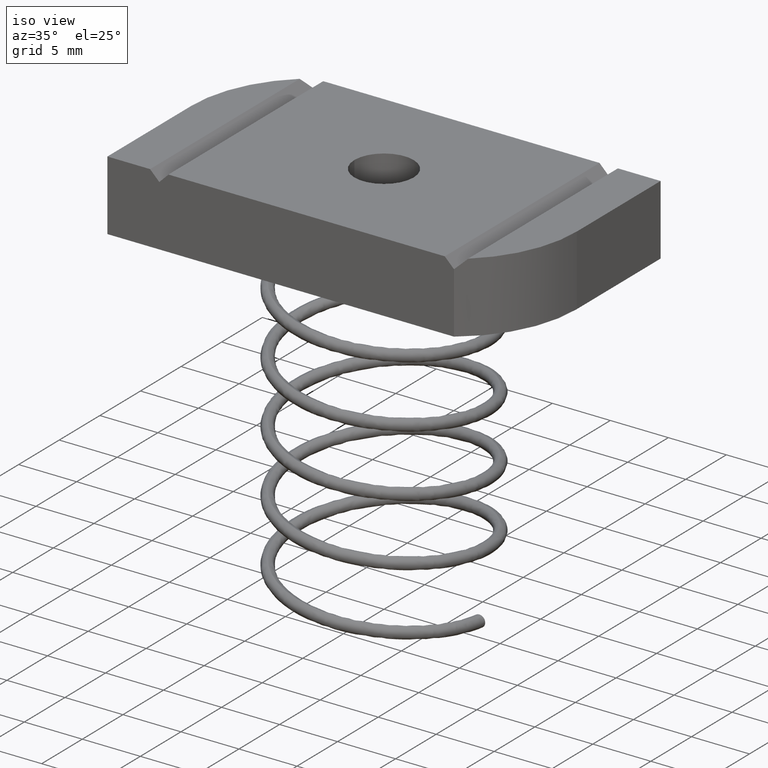
[diagram: clean part render]
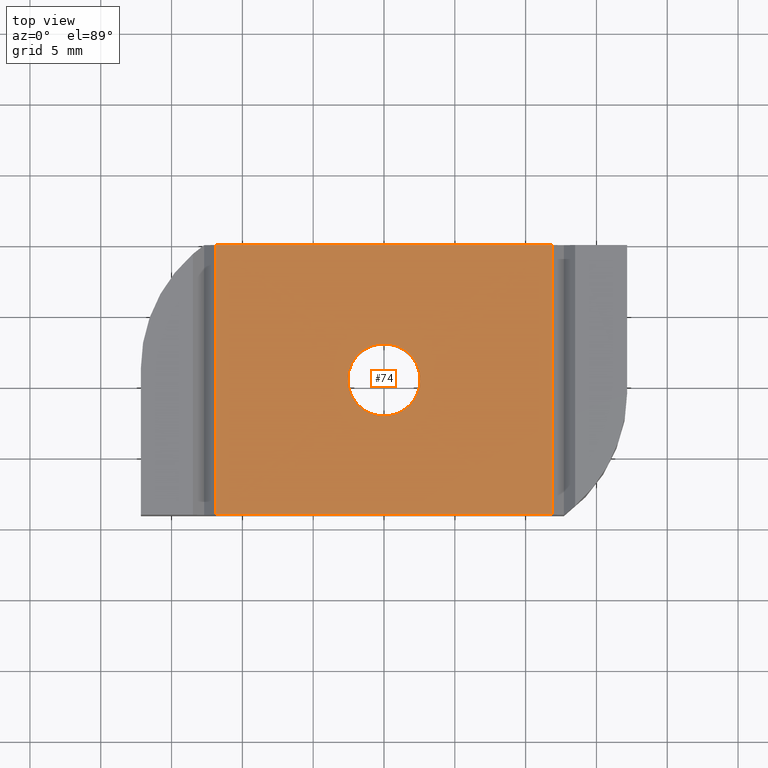
[diagram: tour spotlight — one face highlighted and labeled with its STEP entity id]
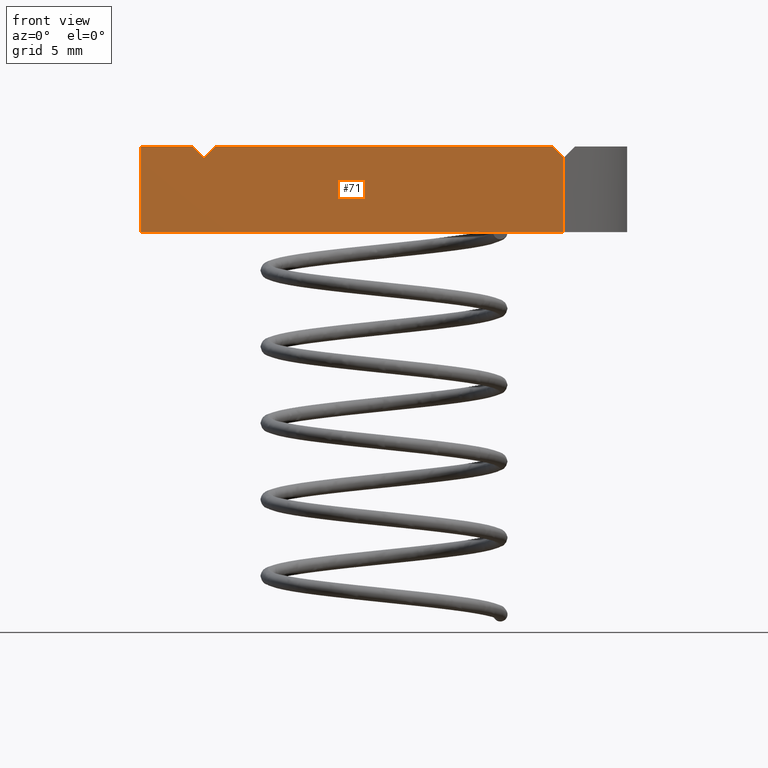
[diagram: tour spotlight — one face highlighted and labeled with its STEP entity id]
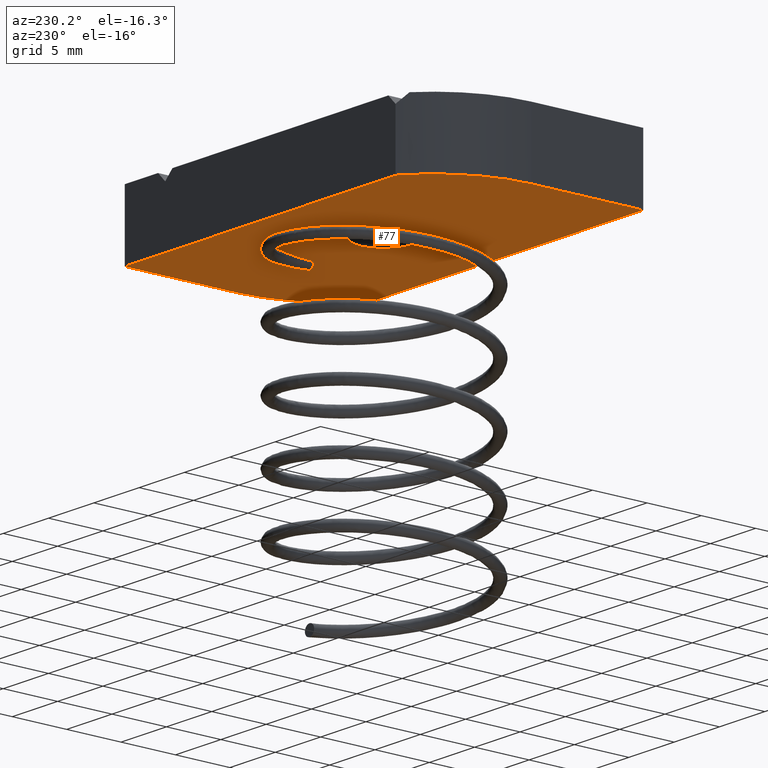
[diagram: tour spotlight — one face highlighted and labeled with its STEP entity id]
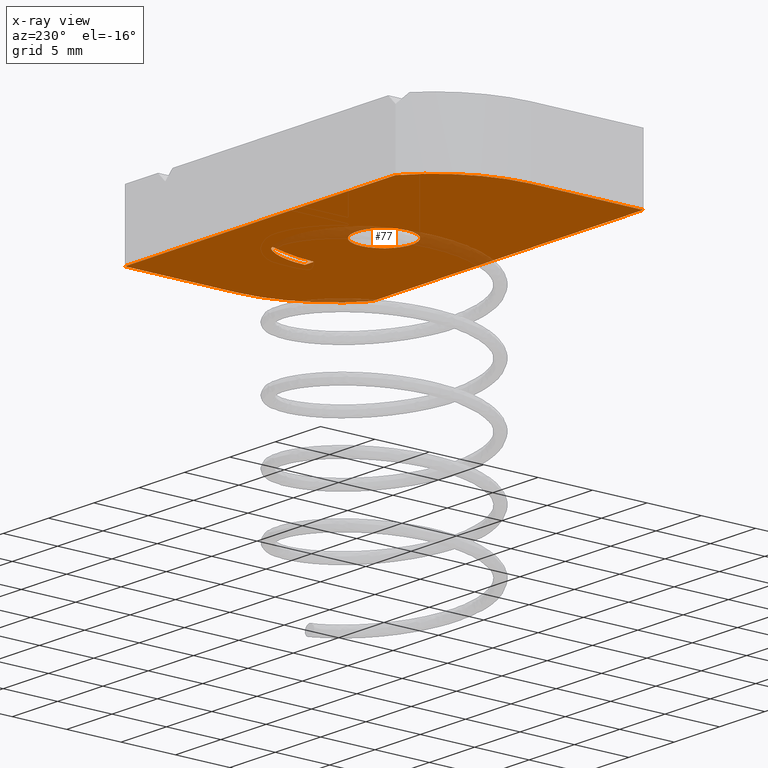
[diagram: x-ray of the same camera — body ghosted, this tour face saturated]
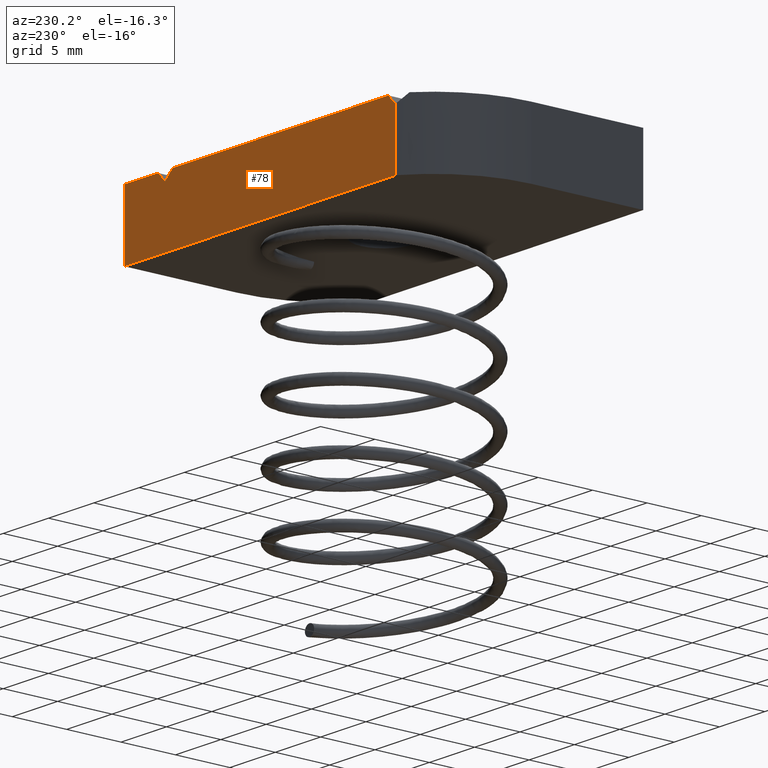
[diagram: tour spotlight — one face highlighted and labeled with its STEP entity id]
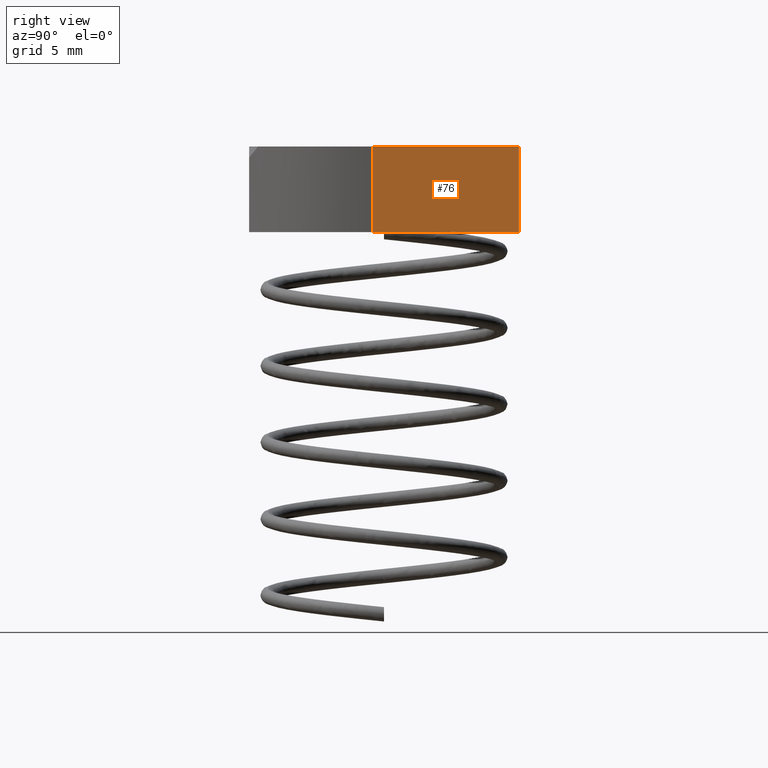
[diagram: tour spotlight — one face highlighted and labeled with its STEP entity id]
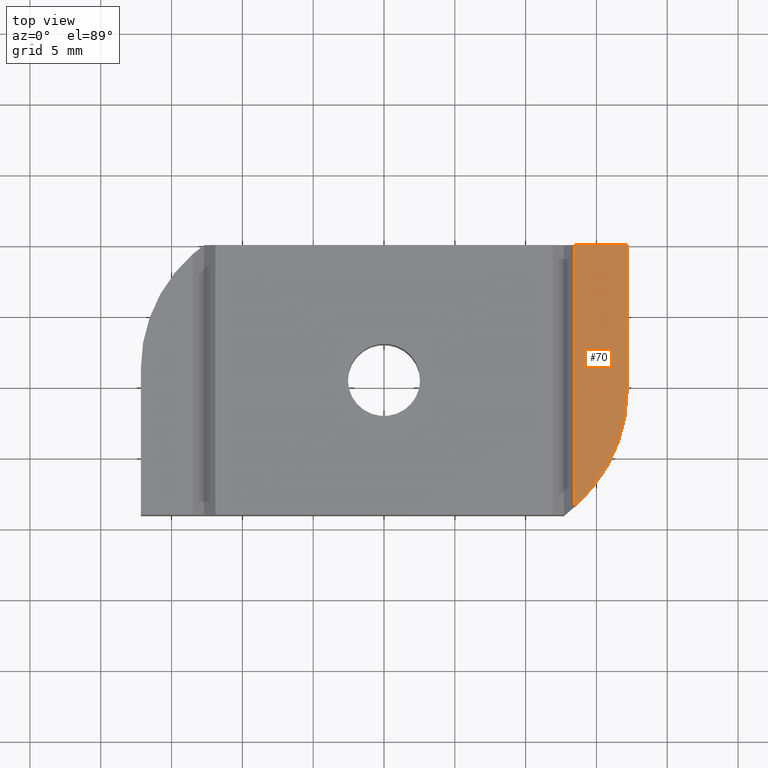
[diagram: tour spotlight — one face highlighted and labeled with its STEP entity id]
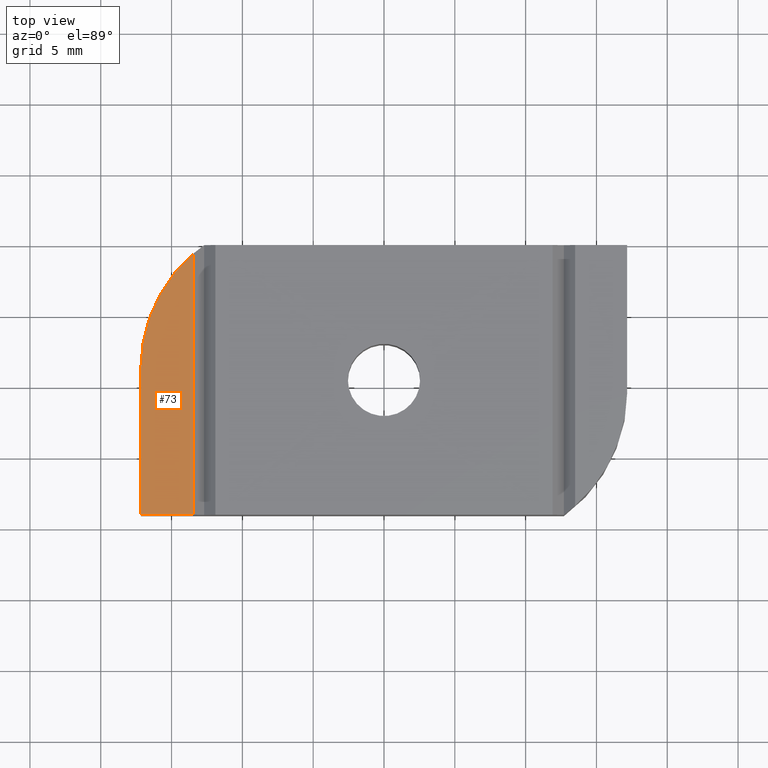
[diagram: tour spotlight — one face highlighted and labeled with its STEP entity id]
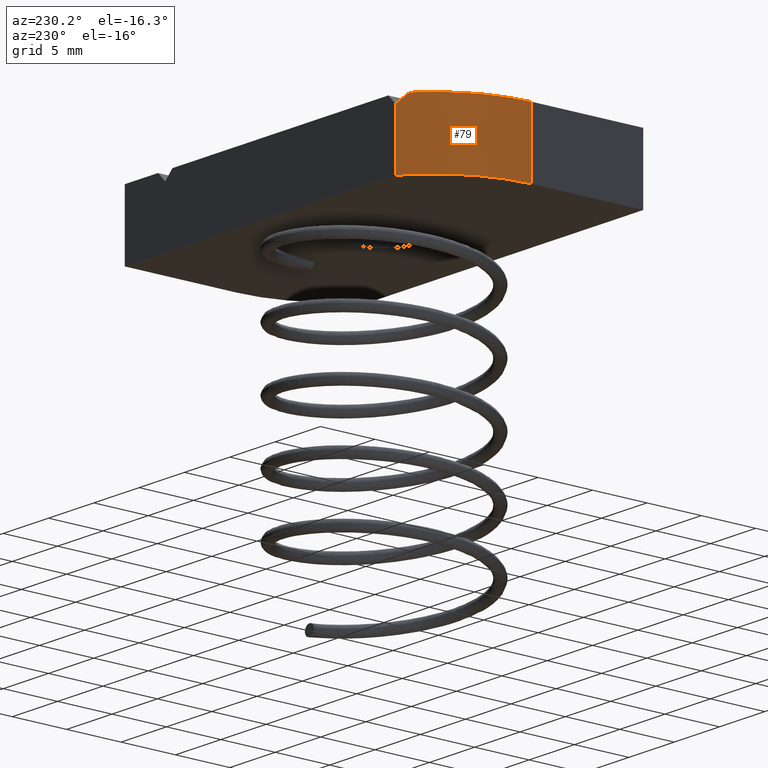
[diagram: tour spotlight — one face highlighted and labeled with its STEP entity id]
A machine part: a face-by-face anatomy tour. The part has 20 B-rep faces; the first image is the clean iso view, then the 8 largest visible faces are spotlighted one at a time (largest first), each with its STEP entity span.

Face 1 — top view, entity #74. In plain terms, the highlighted planar face has unit normal (-0, 0, -1).
Definition (entity closure, byte-faithful):
#32 = ORIENTED_EDGE ( 'NONE', *, *, #2659, .T. ) ;
#38 = ORIENTED_EDGE ( 'NONE', *, *, #94, .F. ) ;
#40 = ORIENTED_EDGE ( 'NONE', *, *, #2656, .T. ) ;
#46 = ORIENTED_EDGE ( 'NONE', *, *, #2658, .F. ) ;
#54 = ORIENTED_EDGE ( 'NONE', *, *, #2657, .T. ) ;
#74 = ADVANCED_FACE ( 'NONE', ( #231, #230 ), #2560, .F. ) ;
#94 = EDGE_CURVE ( 'NONE', #2576, #2588, #260, .T. ) ;
#119 = AXIS2_PLACEMENT_3D ( 'NONE', #2597, #147, #148 ) ;
#147 = DIRECTION ( 'NONE',  ( -0.0000000000000000000, 0.0000000000000000000, -1.000000000000000000 ) ) ;
#148 = DIRECTION ( 'NONE',  ( -1.000000000000000000, 0.0000000000000000000, 0.0000000000000000000 ) ) ;
#208 = VECTOR ( 'NONE', #1115, 39.37007874015748100 ) ;
#209 = LINE ( 'NONE', #1114, #208 ) ;
#220 = LINE ( 'NONE', #1106, #222 ) ;
#221 = CIRCLE ( 'NONE', #2542, 0.1004999999999995200 ) ;
#222 = VECTOR ( 'NONE', #1117, 39.37007874015748100 ) ;
#223 = LINE ( 'NONE', #1118, #224 ) ;
#224 = VECTOR ( 'NONE', #1119, 39.37007874015748100 ) ;
#225 = LINE ( 'NONE', #1120, #226 ) ;
#226 = VECTOR ( 'NONE', #1121, 39.37007874015748100 ) ;
#230 = FACE_OUTER_BOUND ( 'NONE', #1159, .T. ) ;
#231 = FACE_BOUND ( 'NONE', #2033, .T. ) ;
#260 = CIRCLE ( 'NONE', #2522, 0.1004999999999995200 ) ;
#688 = CARTESIAN_POINT ( 'NONE',  ( 0.0000000000000000000, 0.0000000000000000000, 0.1190000000000000500 ) ) ;
#689 = DIRECTION ( 'NONE',  ( -0.0000000000000000000, -0.0000000000000000000, 1.000000000000000000 ) ) ;
#690 = DIRECTION ( 'NONE',  ( 1.000000000000000000, 0.0000000000000000000, 0.0000000000000000000 ) ) ;
#1059 = CARTESIAN_POINT ( 'NONE',  ( -0.4687499999999999400, -0.3750000000000000600, 0.1189999999999999900 ) ) ;
#1062 = CARTESIAN_POINT ( 'NONE',  ( -0.1004999999999995200, 1.230770033143085600E-017, 0.1190000000000000500 ) ) ;
#1070 = CARTESIAN_POINT ( 'NONE',  ( -0.4687499999999999400, 0.3750000000000000600, 0.1189999999999999900 ) ) ;
#1076 = CARTESIAN_POINT ( 'NONE',  ( 0.4687499999999999400, 0.3750000000000000600, 0.1189999999999999900 ) ) ;
#1086 = CARTESIAN_POINT ( 'NONE',  ( 0.1004999999999995200, 0.0000000000000000000, 0.1190000000000000500 ) ) ;
#1087 = CARTESIAN_POINT ( 'NONE',  ( 0.4687499999999999400, -0.3750000000000000600, 0.1189999999999999900 ) ) ;
#1106 = CARTESIAN_POINT ( 'NONE',  ( -0.5000000000000000000, 0.3750000000000000600, 0.1189999999999999900 ) ) ;
#1109 = CARTESIAN_POINT ( 'NONE',  ( 0.0000000000000000000, 0.0000000000000000000, 0.1190000000000000500 ) ) ;
#1111 = DIRECTION ( 'NONE',  ( -0.0000000000000000000, -0.0000000000000000000, 1.000000000000000000 ) ) ;
#1112 = DIRECTION ( 'NONE',  ( 1.000000000000000000, 0.0000000000000000000, 0.0000000000000000000 ) ) ;
#1114 = CARTESIAN_POINT ( 'NONE',  ( -0.6760000000000001600, -0.3750000000000000600, 0.1189999999999999900 ) ) ;
#1115 = DIRECTION ( 'NONE',  ( 1.000000000000000000, 0.0000000000000000000, 0.0000000000000000000 ) ) ;
#1117 = DIRECTION ( 'NONE',  ( -1.000000000000000000, -0.0000000000000000000, -0.0000000000000000000 ) ) ;
#1118 = CARTESIAN_POINT ( 'NONE',  ( 0.4687499999999999400, 0.3750000000000000600, 0.1189999999999999900 ) ) ;
#1119 = DIRECTION ( 'NONE',  ( -0.0000000000000000000, -1.000000000000000000, -0.0000000000000000000 ) ) ;
#1120 = CARTESIAN_POINT ( 'NONE',  ( -0.4687499999999999400, 0.3750000000000000600, 0.1189999999999999900 ) ) ;
#1121 = DIRECTION ( 'NONE',  ( -0.0000000000000000000, -1.000000000000000000, -0.0000000000000000000 ) ) ;
#1159 = EDGE_LOOP ( 'NONE', ( #40, #46, #54, #32 ) ) ;
#2029 = ORIENTED_EDGE ( 'NONE', *, *, #2655, .F. ) ;
#2033 = EDGE_LOOP ( 'NONE', ( #2029, #38 ) ) ;
#2522 = AXIS2_PLACEMENT_3D ( 'NONE', #688, #689, #690 ) ;
#2542 = AXIS2_PLACEMENT_3D ( 'NONE', #1109, #1111, #1112 ) ;
#2550 = VERTEX_POINT ( 'NONE', #1070 ) ;
#2551 = VERTEX_POINT ( 'NONE', #1059 ) ;
#2560 = PLANE ( 'NONE',  #119 ) ;
#2575 = VERTEX_POINT ( 'NONE', #1076 ) ;
#2576 = VERTEX_POINT ( 'NONE', #1062 ) ;
#2588 = VERTEX_POINT ( 'NONE', #1086 ) ;
#2590 = VERTEX_POINT ( 'NONE', #1087 ) ;
#2597 = CARTESIAN_POINT ( 'NONE',  ( 0.2518181818181817700, -0.03099999999999995500, 0.1189999999999999900 ) ) ;
#2655 = EDGE_CURVE ( 'NONE', #2588, #2576, #221, .T. ) ;
#2656 = EDGE_CURVE ( 'NONE', #2551, #2590, #209, .T. ) ;
#2657 = EDGE_CURVE ( 'NONE', #2575, #2550, #220, .T. ) ;
#2658 = EDGE_CURVE ( 'NONE', #2575, #2590, #223, .T. ) ;
#2659 = EDGE_CURVE ( 'NONE', #2550, #2551, #225, .T. ) ;

Face 2 — front view, entity #71. In plain terms, the highlighted planar face has unit normal (0, 1, 0).
Definition (entity closure, byte-faithful):
#7 = ORIENTED_EDGE ( 'NONE', *, *, #2656, .F. ) ;
#19 = ORIENTED_EDGE ( 'NONE', *, *, #126, .F. ) ;
#27 = LINE ( 'NONE', #1018, #1998 ) ;
#33 = ORIENTED_EDGE ( 'NONE', *, *, #136, .F. ) ;
#51 = ORIENTED_EDGE ( 'NONE', *, *, #89, .F. ) ;
#52 = ORIENTED_EDGE ( 'NONE', *, *, #141, .T. ) ;
#71 = ADVANCED_FACE ( 'NONE', ( #1168 ), #2569, .F. ) ;
#89 = EDGE_CURVE ( 'NONE', #2580, #2551, #250, .T. ) ;
#103 = EDGE_CURVE ( 'NONE', #2556, #2557, #255, .T. ) ;
#109 = EDGE_CURVE ( 'NONE', #2591, #2583, #1992, .T. ) ;
#116 = AXIS2_PLACEMENT_3D ( 'NONE', #2592, #2554, #2562 ) ;
#126 = EDGE_CURVE ( 'NONE', #2598, #2580, #27, .T. ) ;
#127 = EDGE_CURVE ( 'NONE', #2556, #2598, #2000, .T. ) ;
#136 = EDGE_CURVE ( 'NONE', #2590, #2591, #2006, .T. ) ;
#141 = EDGE_CURVE ( 'NONE', #2557, #2583, #261, .T. ) ;
#206 = VECTOR ( 'NONE', #1066, 39.37007874015748100 ) ;
#208 = VECTOR ( 'NONE', #1115, 39.37007874015748100 ) ;
#209 = LINE ( 'NONE', #1114, #208 ) ;
#250 = LINE ( 'NONE', #675, #254 ) ;
#254 = VECTOR ( 'NONE', #676, 39.37007874015748900 ) ;
#255 = LINE ( 'NONE', #851, #1991 ) ;
#261 = LINE ( 'NONE', #1065, #206 ) ;
#675 = CARTESIAN_POINT ( 'NONE',  ( -0.5000000000000000000, -0.3750000000000000600, 0.08774999999999996700 ) ) ;
#676 = DIRECTION ( 'NONE',  ( 0.7071067811865476800, 0.0000000000000000000, 0.7071067811865472400 ) ) ;
#851 = CARTESIAN_POINT ( 'NONE',  ( -0.6760000000000001600, -0.3750000000000000600, 0.1189999999999999900 ) ) ;
#1002 = DIRECTION ( 'NONE',  ( -0.0000000000000000000, -0.0000000000000000000, -1.000000000000000000 ) ) ;
#1010 = CARTESIAN_POINT ( 'NONE',  ( 0.5000000000000001100, -0.3750000000000000600, 0.1189999999999999900 ) ) ;
#1011 = DIRECTION ( 'NONE',  ( -0.0000000000000000000, -0.0000000000000000000, -1.000000000000000000 ) ) ;
#1012 = CARTESIAN_POINT ( 'NONE',  ( -0.6760000000000001600, -0.3750000000000000600, 0.1189999999999999900 ) ) ;
#1018 = CARTESIAN_POINT ( 'NONE',  ( -0.5312499999999996700, -0.3750000000000000600, 0.1189999999999999800 ) ) ;
#1019 = DIRECTION ( 'NONE',  ( 0.7071067811865440200, 0.0000000000000000000, -0.7071067811865509000 ) ) ;
#1021 = DIRECTION ( 'NONE',  ( 1.000000000000000000, 0.0000000000000000000, 0.0000000000000000000 ) ) ;
#1033 = CARTESIAN_POINT ( 'NONE',  ( 0.4687499999999999400, -0.3750000000000000600, 0.1189999999999999900 ) ) ;
#1040 = DIRECTION ( 'NONE',  ( 0.7071067811865465700, 0.0000000000000000000, -0.7071067811865484600 ) ) ;
#1059 = CARTESIAN_POINT ( 'NONE',  ( -0.4687499999999999400, -0.3750000000000000600, 0.1189999999999999900 ) ) ;
#1064 = CARTESIAN_POINT ( 'NONE',  ( -0.6760000000000001600, -0.3750000000000000600, -0.1189999999999999900 ) ) ;
#1065 = CARTESIAN_POINT ( 'NONE',  ( -0.6760000000000001600, -0.3750000000000000600, -0.1189999999999999900 ) ) ;
#1066 = DIRECTION ( 'NONE',  ( 1.000000000000000000, 0.0000000000000000000, 0.0000000000000000000 ) ) ;
#1071 = CARTESIAN_POINT ( 'NONE',  ( -0.6760000000000001600, -0.3750000000000000600, 0.1189999999999999900 ) ) ;
#1079 = CARTESIAN_POINT ( 'NONE',  ( -0.5000000000000000000, -0.3750000000000000600, 0.08774999999999996700 ) ) ;
#1082 = CARTESIAN_POINT ( 'NONE',  ( 0.5000000000000001100, -0.3750000000000000600, -0.1189999999999999900 ) ) ;
#1087 = CARTESIAN_POINT ( 'NONE',  ( 0.4687499999999999400, -0.3750000000000000600, 0.1189999999999999900 ) ) ;
#1088 = CARTESIAN_POINT ( 'NONE',  ( 0.5000000000000001100, -0.3750000000000000600, 0.08774999999999987000 ) ) ;
#1091 = CARTESIAN_POINT ( 'NONE',  ( -0.5312499999999996700, -0.3750000000000000600, 0.1189999999999999800 ) ) ;
#1114 = CARTESIAN_POINT ( 'NONE',  ( -0.6760000000000001600, -0.3750000000000000600, 0.1189999999999999900 ) ) ;
#1115 = DIRECTION ( 'NONE',  ( 1.000000000000000000, 0.0000000000000000000, 0.0000000000000000000 ) ) ;
#1168 = FACE_OUTER_BOUND ( 'NONE', #2040, .T. ) ;
#1991 = VECTOR ( 'NONE', #1002, 39.37007874015748100 ) ;
#1992 = LINE ( 'NONE', #1010, #1993 ) ;
#1993 = VECTOR ( 'NONE', #1011, 39.37007874015748100 ) ;
#1998 = VECTOR ( 'NONE', #1019, 39.37007874015748900 ) ;
#2000 = LINE ( 'NONE', #1012, #2002 ) ;
#2002 = VECTOR ( 'NONE', #1021, 39.37007874015748100 ) ;
#2006 = LINE ( 'NONE', #1033, #2017 ) ;
#2017 = VECTOR ( 'NONE', #1040, 39.37007874015748100 ) ;
#2040 = EDGE_LOOP ( 'NONE', ( #2044, #33, #7, #51, #19, #2063, #2641, #52 ) ) ;
#2044 = ORIENTED_EDGE ( 'NONE', *, *, #109, .F. ) ;
#2063 = ORIENTED_EDGE ( 'NONE', *, *, #127, .F. ) ;
#2551 = VERTEX_POINT ( 'NONE', #1059 ) ;
#2554 = DIRECTION ( 'NONE',  ( 0.0000000000000000000, 1.000000000000000000, 0.0000000000000000000 ) ) ;
#2556 = VERTEX_POINT ( 'NONE', #1071 ) ;
#2557 = VERTEX_POINT ( 'NONE', #1064 ) ;
#2562 = DIRECTION ( 'NONE',  ( 0.0000000000000000000, -0.0000000000000000000, 1.000000000000000000 ) ) ;
#2569 = PLANE ( 'NONE',  #116 ) ;
#2580 = VERTEX_POINT ( 'NONE', #1079 ) ;
#2583 = VERTEX_POINT ( 'NONE', #1082 ) ;
#2590 = VERTEX_POINT ( 'NONE', #1087 ) ;
#2591 = VERTEX_POINT ( 'NONE', #1088 ) ;
#2592 = CARTESIAN_POINT ( 'NONE',  ( -0.6760000000000001600, -0.3750000000000000600, 0.1189999999999999900 ) ) ;
#2598 = VERTEX_POINT ( 'NONE', #1091 ) ;
#2641 = ORIENTED_EDGE ( 'NONE', *, *, #103, .T. ) ;
#2656 = EDGE_CURVE ( 'NONE', #2551, #2590, #209, .T. ) ;

Face 3 — auxiliary view, entity #77. An x-ray twin of the same camera follows (body ghosted, this face saturated) — the face is partly hidden behind the body. In plain terms, the highlighted planar face has unit normal (-0, 0, -1).
Definition (entity closure, byte-faithful):
#4 = ORIENTED_EDGE ( 'NONE', *, *, #130, .T. ) ;
#12 = LINE ( 'NONE', #997, #1171 ) ;
#20 = ORIENTED_EDGE ( 'NONE', *, *, #2660, .T. ) ;
#23 = ORIENTED_EDGE ( 'NONE', *, *, #137, .F. ) ;
#30 = ORIENTED_EDGE ( 'NONE', *, *, #2661, .F. ) ;
#39 = ORIENTED_EDGE ( 'NONE', *, *, #2653, .F. ) ;
#66 = B_SPLINE_CURVE_WITH_KNOTS ( 'NONE', 3,
 ( #1039, #1042, #1043, #1044, #1045, #1046, #1047, #1048, #1049, #1050, #1051, #1052, #1053, #1054, #1055, #1056 ),
 .UNSPECIFIED., .F., .F.,
 ( 4, 2, 2, 2, 2, 2, 2, 4 ),
 ( 0.0000000000000000000, 0.002356909959554060300, 0.003535364939331089900, 0.004124592429219604100, 0.004419206174163861500, 0.004566513046635989700, 0.004640166482872053400, 0.004713819919108117000 ),
 .UNSPECIFIED. ) ;
#67 = B_SPLINE_CURVE_WITH_KNOTS ( 'NONE', 3,
 ( #691, #833, #834, #835, #836, #837, #838, #839, #840, #841, #842, #843, #844, #845, #846, #847, #848, #849 ),
 .UNSPECIFIED., .F., .F.,
 ( 4, 2, 2, 2, 2, 2, 2, 2, 4 ),
 ( 0.004713819919108117000, 0.004796661394751693800, 0.004879502870395270600, 0.005045185821682419800, 0.005376551724256717300, 0.006039283529405311600, 0.007364747139702503500, 0.008690210749999694600, 0.01001567436029688700 ),
 .UNSPECIFIED. ) ;
#77 = ADVANCED_FACE ( 'NONE', ( #234, #236, #238 ), #200, .T. ) ;
#96 = EDGE_CURVE ( 'NONE', #2568, #2594, #67, .T. ) ;
#101 = EDGE_CURVE ( 'NONE', #2582, #2557, #12, .T. ) ;
#104 = EDGE_CURVE ( 'NONE', #2565, #2582, #1994, .T. ) ;
#122 = AXIS2_PLACEMENT_3D ( 'NONE', #146, #175, #180 ) ;
#130 = EDGE_CURVE ( 'NONE', #2602, #2593, #2008, .T. ) ;
#137 = EDGE_CURVE ( 'NONE', #2574, #2568, #66, .T. ) ;
#139 = EDGE_CURVE ( 'NONE', #2548, #2581, #2020, .T. ) ;
#141 = EDGE_CURVE ( 'NONE', #2557, #2583, #261, .T. ) ;
#146 = CARTESIAN_POINT ( 'NONE',  ( 0.2518181818181817700, -0.03099999999999995500, -0.1189999999999999900 ) ) ;
#175 = DIRECTION ( 'NONE',  ( -0.0000000000000000000, 0.0000000000000000000, -1.000000000000000000 ) ) ;
#180 = DIRECTION ( 'NONE',  ( -1.000000000000000000, 0.0000000000000000000, 0.0000000000000000000 ) ) ;
#200 = PLANE ( 'NONE',  #122 ) ;
#206 = VECTOR ( 'NONE', #1066, 39.37007874015748100 ) ;
#215 = LINE ( 'NONE', #1104, #216 ) ;
#216 = VECTOR ( 'NONE', #1105, 39.37007874015748100 ) ;
#217 = LINE ( 'NONE', #1107, #218 ) ;
#218 = VECTOR ( 'NONE', #1108, 39.37007874015748100 ) ;
#227 = CIRCLE ( 'NONE', #2540, 0.1004999999999999600 ) ;
#228 = CIRCLE ( 'NONE', #2537, 0.4241818181818182700 ) ;
#234 = FACE_BOUND ( 'NONE', #1155, .T. ) ;
#236 = FACE_BOUND ( 'NONE', #2038, .T. ) ;
#238 = FACE_OUTER_BOUND ( 'NONE', #2041, .T. ) ;
#261 = LINE ( 'NONE', #1065, #206 ) ;
#691 = CARTESIAN_POINT ( 'NONE',  ( 0.2684570408331980500, 0.1805078037844421400, -0.1190000000000000100 ) ) ;
#833 = CARTESIAN_POINT ( 'NONE',  ( 0.2693706479436844300, 0.1811221039813149500, -0.1189999999999999500 ) ) ;
#834 = CARTESIAN_POINT ( 'NONE',  ( 0.2705794426148510600, 0.1809212342445064600, -0.1190000000000001500 ) ) ;
#835 = CARTESIAN_POINT ( 'NONE',  ( 0.2726443186528861900, 0.1802280299371666100, -0.1190000000000001200 ) ) ;
#836 = CARTESIAN_POINT ( 'NONE',  ( 0.2735959997938344200, 0.1797131505375893800, -0.1190000000000000600 ) ) ;
#837 = CARTESIAN_POINT ( 'NONE',  ( 0.2763407721580578600, 0.1780208221843188300, -0.1190000000000000500 ) ) ;
#838 = CARTESIAN_POINT ( 'NONE',  ( 0.2780353528928174400, 0.1766586198872101600, -0.1190000000000000800 ) ) ;
#839 = CARTESIAN_POINT ( 'NONE',  ( 0.2828584798781040300, 0.1724162685694534400, -0.1190000000000001100 ) ) ;
#840 = CARTESIAN_POINT ( 'NONE',  ( 0.2857772648509181400, 0.1693009928465492000, -0.1189999999999999700 ) ) ;
#841 = CARTESIAN_POINT ( 'NONE',  ( 0.2941328003761002300, 0.1595673066143931100, -0.1189999999999999800 ) ) ;
#842 = CARTESIAN_POINT ( 'NONE',  ( 0.2990916156820230300, 0.1525628186157360100, -0.1190000000000010400 ) ) ;
#843 = CARTESIAN_POINT ( 'NONE',  ( 0.3125960355728327800, 0.1310233406365876000, -0.1190000000000010200 ) ) ;
#844 = CARTESIAN_POINT ( 'NONE',  ( 0.3199235135686900300, 0.1157535875727570300, -0.1190000000000011500 ) ) ;
#845 = CARTESIAN_POINT ( 'NONE',  ( 0.3318049183832121900, 0.08370751073496884900, -0.1190000000000011000 ) ) ;
#846 = CARTESIAN_POINT ( 'NONE',  ( 0.3361644876318609100, 0.06736326104882682500, -0.1189999999999999300 ) ) ;
#847 = CARTESIAN_POINT ( 'NONE',  ( 0.3420168317470922400, 0.03409265860388118600, -0.1189999999999999800 ) ) ;
#848 = CARTESIAN_POINT ( 'NONE',  ( 0.3435000000000000800, 0.01707807937888342100, -0.1189999999999999500 ) ) ;
#849 = CARTESIAN_POINT ( 'NONE',  ( 0.3435000000000000300, 0.0000000000000000000, -0.1189999999999999900 ) ) ;
#997 = CARTESIAN_POINT ( 'NONE',  ( -0.6760000000000001600, -0.3750000000000000600, -0.1189999999999999900 ) ) ;
#998 = DIRECTION ( 'NONE',  ( -3.364344819783575000E-016, -1.000000000000000000, -0.0000000000000000000 ) ) ;
#1003 = CARTESIAN_POINT ( 'NONE',  ( -0.2518181818181817700, 0.03100000000000002400, -0.1189999999999999900 ) ) ;
#1005 = DIRECTION ( 'NONE',  ( 0.0000000000000000000, 0.0000000000000000000, 1.000000000000000000 ) ) ;
#1006 = DIRECTION ( 'NONE',  ( -1.000000000000000000, 0.0000000000000000000, 0.0000000000000000000 ) ) ;
#1017 = CARTESIAN_POINT ( 'NONE',  ( 0.0000000000000000000, 0.0000000000000000000, -0.1189999999999999900 ) ) ;
#1027 = DIRECTION ( 'NONE',  ( -0.0000000000000000000, -0.0000000000000000000, 1.000000000000000000 ) ) ;
#1028 = DIRECTION ( 'NONE',  ( 1.000000000000000000, 0.0000000000000000000, 0.0000000000000000000 ) ) ;
#1039 = CARTESIAN_POINT ( 'NONE',  ( 0.3035000000000000500, 0.0000000000000000000, -0.1189999999999999900 ) ) ;
#1042 = CARTESIAN_POINT ( 'NONE',  ( 0.3035000000000001600, 0.03097398769948790000, -0.1189999999999999900 ) ) ;
#1043 = CARTESIAN_POINT ( 'NONE',  ( 0.2995527232415043400, 0.06180889682822773800, -0.1190000000000000100 ) ) ;
#1044 = CARTESIAN_POINT ( 'NONE',  ( 0.2886440137812561500, 0.1068337355545575800, -0.1189999999999999900 ) ) ;
#1045 = CARTESIAN_POINT ( 'NONE',  ( 0.2841464613958560900, 0.1216698439522561800, -0.1190000000000561200 ) ) ;
#1046 = CARTESIAN_POINT ( 'NONE',  ( 0.2767057567231884800, 0.1436471029546875200, -0.1190000000000561200 ) ) ;
#1047 = CARTESIAN_POINT ( 'NONE',  ( 0.2741046900065574100, 0.1509343793340267900, -0.1190000000000604500 ) ) ;
#1048 = CARTESIAN_POINT ( 'NONE',  ( 0.2704549503517633100, 0.1619445040751342500, -0.1190000000000604500 ) ) ;
#1049 = CARTESIAN_POINT ( 'NONE',  ( 0.2692687930686145100, 0.1656237843352307600, -0.1190000000000021600 ) ) ;
#1050 = CARTESIAN_POINT ( 'NONE',  ( 0.2678569065829494700, 0.1712542607270354200, -0.1190000000000021200 ) ) ;
#1051 = CARTESIAN_POINT ( 'NONE',  ( 0.2674393162991011700, 0.1731463760482672400, -0.1189999999999999800 ) ) ;
#1052 = CARTESIAN_POINT ( 'NONE',  ( 0.2671443544150639600, 0.1760386204646934000, -0.1189999999999999900 ) ) ;
#1053 = CARTESIAN_POINT ( 'NONE',  ( 0.2670984297954108200, 0.1770175121235489600, -0.1190000000000000100 ) ) ;
#1054 = CARTESIAN_POINT ( 'NONE',  ( 0.2673361275735700600, 0.1789322327543080300, -0.1190000000000000600 ) ) ;
#1055 = CARTESIAN_POINT ( 'NONE',  ( 0.2676447628947104500, 0.1799616362997528100, -0.1189999999999999900 ) ) ;
#1056 = CARTESIAN_POINT ( 'NONE',  ( 0.2684570408331980500, 0.1805078037844421400, -0.1190000000000000100 ) ) ;
#1060 = CARTESIAN_POINT ( 'NONE',  ( 0.6760000000000001600, 0.3750000000000000600, -0.1189999999999999900 ) ) ;
#1061 = DIRECTION ( 'NONE',  ( -0.0000000000000000000, 1.000000000000000000, -0.0000000000000000000 ) ) ;
#1064 = CARTESIAN_POINT ( 'NONE',  ( -0.6760000000000001600, -0.3750000000000000600, -0.1189999999999999900 ) ) ;
#1065 = CARTESIAN_POINT ( 'NONE',  ( -0.6760000000000001600, -0.3750000000000000600, -0.1189999999999999900 ) ) ;
#1066 = DIRECTION ( 'NONE',  ( 1.000000000000000000, 0.0000000000000000000, 0.0000000000000000000 ) ) ;
#1068 = CARTESIAN_POINT ( 'NONE',  ( 0.6760000000000001600, -0.03099999999999990600, -0.1189999999999999900 ) ) ;
#1072 = CARTESIAN_POINT ( 'NONE',  ( -0.5000000000000000000, 0.3750000000000000600, -0.1189999999999999900 ) ) ;
#1073 = CARTESIAN_POINT ( 'NONE',  ( 0.2684570408331980500, 0.1805078037844421400, -0.1190000000000000100 ) ) ;
#1075 = CARTESIAN_POINT ( 'NONE',  ( 0.3035000000000000500, 0.0000000000000000000, -0.1189999999999999900 ) ) ;
#1080 = CARTESIAN_POINT ( 'NONE',  ( 0.6760000000000001600, 0.3750000000000000600, -0.1189999999999999900 ) ) ;
#1081 = CARTESIAN_POINT ( 'NONE',  ( -0.6759999999999999300, 0.03100000000000002400, -0.1189999999999999900 ) ) ;
#1082 = CARTESIAN_POINT ( 'NONE',  ( 0.5000000000000001100, -0.3750000000000000600, -0.1189999999999999900 ) ) ;
#1089 = CARTESIAN_POINT ( 'NONE',  ( 0.1004999999999999600, 0.0000000000000000000, -0.1189999999999999900 ) ) ;
#1090 = CARTESIAN_POINT ( 'NONE',  ( 0.3435000000000000300, 0.0000000000000000000, -0.1189999999999999900 ) ) ;
#1095 = CARTESIAN_POINT ( 'NONE',  ( -0.1004999999999999600, 1.230770033143089400E-017, -0.1189999999999999900 ) ) ;
#1104 = CARTESIAN_POINT ( 'NONE',  ( -0.5000000000000000000, 0.3750000000000000600, -0.1189999999999999900 ) ) ;
#1105 = DIRECTION ( 'NONE',  ( -1.000000000000000000, -0.0000000000000000000, -0.0000000000000000000 ) ) ;
#1107 = CARTESIAN_POINT ( 'NONE',  ( 0.2518181818181817700, 0.0000000000000000000, -0.1189999999999999900 ) ) ;
#1108 = DIRECTION ( 'NONE',  ( -1.000000000000000000, 0.0000000000000000000, 0.0000000000000000000 ) ) ;
#1113 = CARTESIAN_POINT ( 'NONE',  ( 0.2518181818181817700, -0.03099999999999995500, -0.1189999999999999900 ) ) ;
#1116 = CARTESIAN_POINT ( 'NONE',  ( 0.0000000000000000000, 0.0000000000000000000, -0.1189999999999999900 ) ) ;
#1122 = DIRECTION ( 'NONE',  ( -0.0000000000000000000, -0.0000000000000000000, 1.000000000000000000 ) ) ;
#1123 = DIRECTION ( 'NONE',  ( 1.000000000000000000, 0.0000000000000000000, 0.0000000000000000000 ) ) ;
#1126 = DIRECTION ( 'NONE',  ( 0.0000000000000000000, 0.0000000000000000000, 1.000000000000000000 ) ) ;
#1127 = DIRECTION ( 'NONE',  ( -1.000000000000000000, 0.0000000000000000000, 0.0000000000000000000 ) ) ;
#1155 = EDGE_LOOP ( 'NONE', ( #39, #2043, #23 ) ) ;
#1171 = VECTOR ( 'NONE', #998, 39.37007874015748100 ) ;
#1994 = CIRCLE ( 'NONE', #2523, 0.4241818181818182200 ) ;
#2008 = CIRCLE ( 'NONE', #2538, 0.1004999999999999600 ) ;
#2020 = LINE ( 'NONE', #1060, #2021 ) ;
#2021 = VECTOR ( 'NONE', #1061, 39.37007874015748100 ) ;
#2025 = ORIENTED_EDGE ( 'NONE', *, *, #141, .F. ) ;
#2030 = ORIENTED_EDGE ( 'NONE', *, *, #101, .F. ) ;
#2038 = EDGE_LOOP ( 'NONE', ( #20, #4 ) ) ;
#2041 = EDGE_LOOP ( 'NONE', ( #2054, #30, #2025, #2030, #2047, #2060 ) ) ;
#2043 = ORIENTED_EDGE ( 'NONE', *, *, #96, .F. ) ;
#2047 = ORIENTED_EDGE ( 'NONE', *, *, #104, .F. ) ;
#2054 = ORIENTED_EDGE ( 'NONE', *, *, #139, .F. ) ;
#2060 = ORIENTED_EDGE ( 'NONE', *, *, #2652, .F. ) ;
#2523 = AXIS2_PLACEMENT_3D ( 'NONE', #1003, #1005, #1006 ) ;
#2537 = AXIS2_PLACEMENT_3D ( 'NONE', #1113, #1126, #1127 ) ;
#2538 = AXIS2_PLACEMENT_3D ( 'NONE', #1017, #1027, #1028 ) ;
#2540 = AXIS2_PLACEMENT_3D ( 'NONE', #1116, #1122, #1123 ) ;
#2548 = VERTEX_POINT ( 'NONE', #1068 ) ;
#2557 = VERTEX_POINT ( 'NONE', #1064 ) ;
#2565 = VERTEX_POINT ( 'NONE', #1072 ) ;
#2568 = VERTEX_POINT ( 'NONE', #1073 ) ;
#2574 = VERTEX_POINT ( 'NONE', #1075 ) ;
#2581 = VERTEX_POINT ( 'NONE', #1080 ) ;
#2582 = VERTEX_POINT ( 'NONE', #1081 ) ;
#2583 = VERTEX_POINT ( 'NONE', #1082 ) ;
#2593 = VERTEX_POINT ( 'NONE', #1089 ) ;
#2594 = VERTEX_POINT ( 'NONE', #1090 ) ;
#2602 = VERTEX_POINT ( 'NONE', #1095 ) ;
#2652 = EDGE_CURVE ( 'NONE', #2581, #2565, #215, .T. ) ;
#2653 = EDGE_CURVE ( 'NONE', #2594, #2574, #217, .T. ) ;
#2660 = EDGE_CURVE ( 'NONE', #2593, #2602, #227, .T. ) ;
#2661 = EDGE_CURVE ( 'NONE', #2583, #2548, #228, .T. ) ;

Face 4 — auxiliary view, entity #78. In plain terms, the highlighted planar face has unit normal (0, -1, 0).
Definition (entity closure, byte-faithful):
#10 = ORIENTED_EDGE ( 'NONE', *, *, #2652, .T. ) ;
#13 = ORIENTED_EDGE ( 'NONE', *, *, #138, .T. ) ;
#43 = ORIENTED_EDGE ( 'NONE', *, *, #2654, .T. ) ;
#78 = ADVANCED_FACE ( 'NONE', ( #237 ), #149, .F. ) ;
#123 = AXIS2_PLACEMENT_3D ( 'NONE', #151, #177, #161 ) ;
#134 = EDGE_CURVE ( 'NONE', #2577, #2571, #2013, .T. ) ;
#135 = EDGE_CURVE ( 'NONE', #2575, #2585, #2015, .T. ) ;
#138 = EDGE_CURVE ( 'NONE', #2585, #2571, #2019, .T. ) ;
#149 = PLANE ( 'NONE',  #123 ) ;
#151 = CARTESIAN_POINT ( 'NONE',  ( -0.5000000000000000000, 0.3750000000000000600, 0.1189999999999999900 ) ) ;
#161 = DIRECTION ( 'NONE',  ( 0.0000000000000000000, -0.0000000000000000000, -1.000000000000000000 ) ) ;
#177 = DIRECTION ( 'NONE',  ( 0.0000000000000000000, -1.000000000000000000, 0.0000000000000000000 ) ) ;
#207 = LINE ( 'NONE', #1100, #210 ) ;
#210 = VECTOR ( 'NONE', #1101, 39.37007874015748100 ) ;
#211 = LINE ( 'NONE', #1096, #219 ) ;
#213 = LINE ( 'NONE', #1102, #214 ) ;
#214 = VECTOR ( 'NONE', #1103, 39.37007874015748900 ) ;
#215 = LINE ( 'NONE', #1104, #216 ) ;
#216 = VECTOR ( 'NONE', #1105, 39.37007874015748100 ) ;
#219 = VECTOR ( 'NONE', #1110, 39.37007874015748100 ) ;
#220 = LINE ( 'NONE', #1106, #222 ) ;
#222 = VECTOR ( 'NONE', #1117, 39.37007874015748100 ) ;
#237 = FACE_OUTER_BOUND ( 'NONE', #2039, .T. ) ;
#1035 = CARTESIAN_POINT ( 'NONE',  ( -0.5000000000000000000, 0.3750000000000000600, 0.1189999999999999900 ) ) ;
#1036 = DIRECTION ( 'NONE',  ( -1.000000000000000000, -0.0000000000000000000, -0.0000000000000000000 ) ) ;
#1037 = CARTESIAN_POINT ( 'NONE',  ( 0.4687499999999999400, 0.3750000000000000600, 0.1189999999999999900 ) ) ;
#1038 = DIRECTION ( 'NONE',  ( 0.7071067811865465700, 0.0000000000000000000, -0.7071067811865484600 ) ) ;
#1057 = CARTESIAN_POINT ( 'NONE',  ( 0.5000000000000000000, 0.3750000000000000600, 0.08774999999999987000 ) ) ;
#1058 = DIRECTION ( 'NONE',  ( 0.7071067811865433500, 0.0000000000000000000, 0.7071067811865515700 ) ) ;
#1067 = CARTESIAN_POINT ( 'NONE',  ( 0.5312499999999997800, 0.3750000000000000600, 0.1189999999999999900 ) ) ;
#1070 = CARTESIAN_POINT ( 'NONE',  ( -0.4687499999999999400, 0.3750000000000000600, 0.1189999999999999900 ) ) ;
#1072 = CARTESIAN_POINT ( 'NONE',  ( -0.5000000000000000000, 0.3750000000000000600, -0.1189999999999999900 ) ) ;
#1076 = CARTESIAN_POINT ( 'NONE',  ( 0.4687499999999999400, 0.3750000000000000600, 0.1189999999999999900 ) ) ;
#1077 = CARTESIAN_POINT ( 'NONE',  ( 0.6760000000000001600, 0.3750000000000000600, 0.1189999999999999900 ) ) ;
#1080 = CARTESIAN_POINT ( 'NONE',  ( 0.6760000000000001600, 0.3750000000000000600, -0.1189999999999999900 ) ) ;
#1084 = CARTESIAN_POINT ( 'NONE',  ( 0.5000000000000000000, 0.3750000000000000600, 0.08774999999999987000 ) ) ;
#1094 = CARTESIAN_POINT ( 'NONE',  ( -0.5000000000000000000, 0.3750000000000000600, 0.08774999999999996700 ) ) ;
#1096 = CARTESIAN_POINT ( 'NONE',  ( 0.6760000000000001600, 0.3750000000000000600, 0.1189999999999999900 ) ) ;
#1100 = CARTESIAN_POINT ( 'NONE',  ( -0.5000000000000000000, 0.3750000000000000600, 0.1189999999999999900 ) ) ;
#1101 = DIRECTION ( 'NONE',  ( -0.0000000000000000000, -0.0000000000000000000, -1.000000000000000000 ) ) ;
#1102 = CARTESIAN_POINT ( 'NONE',  ( -0.5000000000000000000, 0.3750000000000000600, 0.08774999999999996700 ) ) ;
#1103 = DIRECTION ( 'NONE',  ( 0.7071067811865476800, 0.0000000000000000000, 0.7071067811865472400 ) ) ;
#1104 = CARTESIAN_POINT ( 'NONE',  ( -0.5000000000000000000, 0.3750000000000000600, -0.1189999999999999900 ) ) ;
#1105 = DIRECTION ( 'NONE',  ( -1.000000000000000000, -0.0000000000000000000, -0.0000000000000000000 ) ) ;
#1106 = CARTESIAN_POINT ( 'NONE',  ( -0.5000000000000000000, 0.3750000000000000600, 0.1189999999999999900 ) ) ;
#1110 = DIRECTION ( 'NONE',  ( -0.0000000000000000000, -0.0000000000000000000, -1.000000000000000000 ) ) ;
#1117 = DIRECTION ( 'NONE',  ( -1.000000000000000000, -0.0000000000000000000, -0.0000000000000000000 ) ) ;
#2012 = VECTOR ( 'NONE', #1058, 39.37007874015748900 ) ;
#2013 = LINE ( 'NONE', #1035, #2014 ) ;
#2014 = VECTOR ( 'NONE', #1036, 39.37007874015748100 ) ;
#2015 = LINE ( 'NONE', #1037, #2016 ) ;
#2016 = VECTOR ( 'NONE', #1038, 39.37007874015748100 ) ;
#2019 = LINE ( 'NONE', #1057, #2012 ) ;
#2024 = ORIENTED_EDGE ( 'NONE', *, *, #2649, .F. ) ;
#2028 = ORIENTED_EDGE ( 'NONE', *, *, #135, .T. ) ;
#2039 = EDGE_LOOP ( 'NONE', ( #2028, #13, #2645, #43, #10, #2024, #2046, #2052 ) ) ;
#2046 = ORIENTED_EDGE ( 'NONE', *, *, #2651, .T. ) ;
#2052 = ORIENTED_EDGE ( 'NONE', *, *, #2657, .F. ) ;
#2550 = VERTEX_POINT ( 'NONE', #1070 ) ;
#2565 = VERTEX_POINT ( 'NONE', #1072 ) ;
#2571 = VERTEX_POINT ( 'NONE', #1067 ) ;
#2575 = VERTEX_POINT ( 'NONE', #1076 ) ;
#2577 = VERTEX_POINT ( 'NONE', #1077 ) ;
#2581 = VERTEX_POINT ( 'NONE', #1080 ) ;
#2585 = VERTEX_POINT ( 'NONE', #1084 ) ;
#2601 = VERTEX_POINT ( 'NONE', #1094 ) ;
#2645 = ORIENTED_EDGE ( 'NONE', *, *, #134, .F. ) ;
#2649 = EDGE_CURVE ( 'NONE', #2601, #2565, #207, .T. ) ;
#2651 = EDGE_CURVE ( 'NONE', #2601, #2550, #213, .T. ) ;
#2652 = EDGE_CURVE ( 'NONE', #2581, #2565, #215, .T. ) ;
#2654 = EDGE_CURVE ( 'NONE', #2577, #2581, #211, .T. ) ;
#2657 = EDGE_CURVE ( 'NONE', #2575, #2550, #220, .T. ) ;

Face 5 — right view, entity #76. In plain terms, the highlighted planar face has unit normal (-1, 0, 0).
Definition (entity closure, byte-faithful):
#53 = ORIENTED_EDGE ( 'NONE', *, *, #131, .F. ) ;
#59 = ORIENTED_EDGE ( 'NONE', *, *, #139, .T. ) ;
#76 = ADVANCED_FACE ( 'NONE', ( #233 ), #142, .F. ) ;
#121 = AXIS2_PLACEMENT_3D ( 'NONE', #155, #154, #153 ) ;
#131 = EDGE_CURVE ( 'NONE', #2599, #2577, #2007, .T. ) ;
#139 = EDGE_CURVE ( 'NONE', #2548, #2581, #2020, .T. ) ;
#140 = EDGE_CURVE ( 'NONE', #2599, #2548, #2018, .T. ) ;
#142 = PLANE ( 'NONE',  #121 ) ;
#153 = DIRECTION ( 'NONE',  ( 0.0000000000000000000, 0.0000000000000000000, 1.000000000000000000 ) ) ;
#154 = DIRECTION ( 'NONE',  ( -1.000000000000000000, 0.0000000000000000000, 0.0000000000000000000 ) ) ;
#155 = CARTESIAN_POINT ( 'NONE',  ( 0.6760000000000001600, 0.3750000000000000600, 0.1189999999999999900 ) ) ;
#211 = LINE ( 'NONE', #1096, #219 ) ;
#219 = VECTOR ( 'NONE', #1110, 39.37007874015748100 ) ;
#233 = FACE_OUTER_BOUND ( 'NONE', #1156, .T. ) ;
#1022 = CARTESIAN_POINT ( 'NONE',  ( 0.6760000000000001600, 0.3750000000000000600, 0.1189999999999999900 ) ) ;
#1030 = DIRECTION ( 'NONE',  ( -0.0000000000000000000, 1.000000000000000000, -0.0000000000000000000 ) ) ;
#1041 = CARTESIAN_POINT ( 'NONE',  ( 0.6760000000000001600, -0.03099999999999990600, 0.1189999999999999900 ) ) ;
#1060 = CARTESIAN_POINT ( 'NONE',  ( 0.6760000000000001600, 0.3750000000000000600, -0.1189999999999999900 ) ) ;
#1061 = DIRECTION ( 'NONE',  ( -0.0000000000000000000, 1.000000000000000000, -0.0000000000000000000 ) ) ;
#1063 = DIRECTION ( 'NONE',  ( -0.0000000000000000000, -0.0000000000000000000, -1.000000000000000000 ) ) ;
#1068 = CARTESIAN_POINT ( 'NONE',  ( 0.6760000000000001600, -0.03099999999999990600, -0.1189999999999999900 ) ) ;
#1077 = CARTESIAN_POINT ( 'NONE',  ( 0.6760000000000001600, 0.3750000000000000600, 0.1189999999999999900 ) ) ;
#1080 = CARTESIAN_POINT ( 'NONE',  ( 0.6760000000000001600, 0.3750000000000000600, -0.1189999999999999900 ) ) ;
#1092 = CARTESIAN_POINT ( 'NONE',  ( 0.6760000000000001600, -0.03099999999999990600, 0.1189999999999999900 ) ) ;
#1096 = CARTESIAN_POINT ( 'NONE',  ( 0.6760000000000001600, 0.3750000000000000600, 0.1189999999999999900 ) ) ;
#1110 = DIRECTION ( 'NONE',  ( -0.0000000000000000000, -0.0000000000000000000, -1.000000000000000000 ) ) ;
#1156 = EDGE_LOOP ( 'NONE', ( #59, #2027, #53, #2026 ) ) ;
#2003 = VECTOR ( 'NONE', #1030, 39.37007874015748100 ) ;
#2007 = LINE ( 'NONE', #1022, #2003 ) ;
#2018 = LINE ( 'NONE', #1041, #2022 ) ;
#2020 = LINE ( 'NONE', #1060, #2021 ) ;
#2021 = VECTOR ( 'NONE', #1061, 39.37007874015748100 ) ;
#2022 = VECTOR ( 'NONE', #1063, 39.37007874015748100 ) ;
#2026 = ORIENTED_EDGE ( 'NONE', *, *, #140, .T. ) ;
#2027 = ORIENTED_EDGE ( 'NONE', *, *, #2654, .F. ) ;
#2548 = VERTEX_POINT ( 'NONE', #1068 ) ;
#2577 = VERTEX_POINT ( 'NONE', #1077 ) ;
#2581 = VERTEX_POINT ( 'NONE', #1080 ) ;
#2599 = VERTEX_POINT ( 'NONE', #1092 ) ;
#2654 = EDGE_CURVE ( 'NONE', #2577, #2581, #211, .T. ) ;

Face 6 — top view, entity #70. In plain terms, the highlighted planar face has unit normal (-0, 0, -1).
Definition (entity closure, byte-faithful):
#15 = ORIENTED_EDGE ( 'NONE', *, *, #128, .T. ) ;
#17 = ORIENTED_EDGE ( 'NONE', *, *, #131, .T. ) ;
#21 = ORIENTED_EDGE ( 'NONE', *, *, #134, .T. ) ;
#25 = ORIENTED_EDGE ( 'NONE', *, *, #91, .T. ) ;
#70 = ADVANCED_FACE ( 'NONE', ( #1167 ), #2555, .F. ) ;
#91 = EDGE_CURVE ( 'NONE', #2571, #2579, #252, .T. ) ;
#114 = AXIS2_PLACEMENT_3D ( 'NONE', #2586, #2561, #2547 ) ;
#128 = EDGE_CURVE ( 'NONE', #2579, #2599, #2005, .T. ) ;
#131 = EDGE_CURVE ( 'NONE', #2599, #2577, #2007, .T. ) ;
#134 = EDGE_CURVE ( 'NONE', #2577, #2571, #2013, .T. ) ;
#252 = LINE ( 'NONE', #678, #253 ) ;
#253 = VECTOR ( 'NONE', #682, 39.37007874015748100 ) ;
#678 = CARTESIAN_POINT ( 'NONE',  ( 0.5312499999999997800, 0.3750000000000000600, 0.1189999999999999900 ) ) ;
#682 = DIRECTION ( 'NONE',  ( -0.0000000000000000000, -1.000000000000000000, -0.0000000000000000000 ) ) ;
#1020 = CARTESIAN_POINT ( 'NONE',  ( 0.2518181818181817700, -0.03099999999999995500, 0.1189999999999999900 ) ) ;
#1022 = CARTESIAN_POINT ( 'NONE',  ( 0.6760000000000001600, 0.3750000000000000600, 0.1189999999999999900 ) ) ;
#1023 = DIRECTION ( 'NONE',  ( 0.0000000000000000000, 0.0000000000000000000, 1.000000000000000000 ) ) ;
#1024 = DIRECTION ( 'NONE',  ( -1.000000000000000000, 0.0000000000000000000, 0.0000000000000000000 ) ) ;
#1030 = DIRECTION ( 'NONE',  ( -0.0000000000000000000, 1.000000000000000000, -0.0000000000000000000 ) ) ;
#1035 = CARTESIAN_POINT ( 'NONE',  ( -0.5000000000000000000, 0.3750000000000000600, 0.1189999999999999900 ) ) ;
#1036 = DIRECTION ( 'NONE',  ( -1.000000000000000000, -0.0000000000000000000, -0.0000000000000000000 ) ) ;
#1067 = CARTESIAN_POINT ( 'NONE',  ( 0.5312499999999997800, 0.3750000000000000600, 0.1189999999999999900 ) ) ;
#1077 = CARTESIAN_POINT ( 'NONE',  ( 0.6760000000000001600, 0.3750000000000000600, 0.1189999999999999900 ) ) ;
#1078 = CARTESIAN_POINT ( 'NONE',  ( 0.5312499999999997800, -0.3501364502272287200, 0.1189999999999999900 ) ) ;
#1092 = CARTESIAN_POINT ( 'NONE',  ( 0.6760000000000001600, -0.03099999999999990600, 0.1189999999999999900 ) ) ;
#1167 = FACE_OUTER_BOUND ( 'NONE', #2032, .T. ) ;
#2003 = VECTOR ( 'NONE', #1030, 39.37007874015748100 ) ;
#2005 = CIRCLE ( 'NONE', #2534, 0.4241818181818182700 ) ;
#2007 = LINE ( 'NONE', #1022, #2003 ) ;
#2013 = LINE ( 'NONE', #1035, #2014 ) ;
#2014 = VECTOR ( 'NONE', #1036, 39.37007874015748100 ) ;
#2032 = EDGE_LOOP ( 'NONE', ( #21, #25, #15, #17 ) ) ;
#2534 = AXIS2_PLACEMENT_3D ( 'NONE', #1020, #1023, #1024 ) ;
#2547 = DIRECTION ( 'NONE',  ( -1.000000000000000000, 0.0000000000000000000, 0.0000000000000000000 ) ) ;
#2555 = PLANE ( 'NONE',  #114 ) ;
#2561 = DIRECTION ( 'NONE',  ( -0.0000000000000000000, 0.0000000000000000000, -1.000000000000000000 ) ) ;
#2571 = VERTEX_POINT ( 'NONE', #1067 ) ;
#2577 = VERTEX_POINT ( 'NONE', #1077 ) ;
#2579 = VERTEX_POINT ( 'NONE', #1078 ) ;
#2586 = CARTESIAN_POINT ( 'NONE',  ( 0.2518181818181817700, -0.03099999999999995500, 0.1189999999999999900 ) ) ;
#2599 = VERTEX_POINT ( 'NONE', #1092 ) ;

Face 7 — top view, entity #73. In plain terms, the highlighted planar face has unit normal (-0, 0, -1).
Definition (entity closure, byte-faithful):
#34 = ORIENTED_EDGE ( 'NONE', *, *, #105, .T. ) ;
#58 = ORIENTED_EDGE ( 'NONE', *, *, #92, .T. ) ;
#60 = ORIENTED_EDGE ( 'NONE', *, *, #100, .T. ) ;
#62 = ORIENTED_EDGE ( 'NONE', *, *, #127, .T. ) ;
#73 = ADVANCED_FACE ( 'NONE', ( #1169 ), #2578, .F. ) ;
#92 = EDGE_CURVE ( 'NONE', #2598, #2600, #248, .T. ) ;
#100 = EDGE_CURVE ( 'NONE', #2587, #2556, #263, .T. ) ;
#105 = EDGE_CURVE ( 'NONE', #2600, #2587, #1996, .T. ) ;
#118 = AXIS2_PLACEMENT_3D ( 'NONE', #2595, #2563, #164 ) ;
#127 = EDGE_CURVE ( 'NONE', #2556, #2598, #2000, .T. ) ;
#164 = DIRECTION ( 'NONE',  ( -1.000000000000000000, 0.0000000000000000000, 0.0000000000000000000 ) ) ;
#248 = LINE ( 'NONE', #677, #256 ) ;
#256 = VECTOR ( 'NONE', #684, 39.37007874015748100 ) ;
#262 = VECTOR ( 'NONE', #996, 39.37007874015748100 ) ;
#263 = LINE ( 'NONE', #992, #262 ) ;
#677 = CARTESIAN_POINT ( 'NONE',  ( -0.5312499999999996700, -0.03099999999999995500, 0.1189999999999999900 ) ) ;
#684 = DIRECTION ( 'NONE',  ( 0.0000000000000000000, 1.000000000000000000, 0.0000000000000000000 ) ) ;
#992 = CARTESIAN_POINT ( 'NONE',  ( -0.6760000000000001600, -0.3750000000000000600, 0.1189999999999999900 ) ) ;
#996 = DIRECTION ( 'NONE',  ( -3.364344819783575000E-016, -1.000000000000000000, -0.0000000000000000000 ) ) ;
#1001 = CARTESIAN_POINT ( 'NONE',  ( -0.2518181818181817700, 0.03100000000000002400, 0.1189999999999999900 ) ) ;
#1008 = DIRECTION ( 'NONE',  ( 0.0000000000000000000, 0.0000000000000000000, 1.000000000000000000 ) ) ;
#1009 = DIRECTION ( 'NONE',  ( -1.000000000000000000, 0.0000000000000000000, 0.0000000000000000000 ) ) ;
#1012 = CARTESIAN_POINT ( 'NONE',  ( -0.6760000000000001600, -0.3750000000000000600, 0.1189999999999999900 ) ) ;
#1021 = DIRECTION ( 'NONE',  ( 1.000000000000000000, 0.0000000000000000000, 0.0000000000000000000 ) ) ;
#1071 = CARTESIAN_POINT ( 'NONE',  ( -0.6760000000000001600, -0.3750000000000000600, 0.1189999999999999900 ) ) ;
#1085 = CARTESIAN_POINT ( 'NONE',  ( -0.6759999999999999300, 0.03100000000000002400, 0.1189999999999999900 ) ) ;
#1091 = CARTESIAN_POINT ( 'NONE',  ( -0.5312499999999996700, -0.3750000000000000600, 0.1189999999999999800 ) ) ;
#1093 = CARTESIAN_POINT ( 'NONE',  ( -0.5312499999999996700, 0.3501364502272289500, 0.1189999999999999900 ) ) ;
#1157 = EDGE_LOOP ( 'NONE', ( #62, #58, #34, #60 ) ) ;
#1169 = FACE_OUTER_BOUND ( 'NONE', #1157, .T. ) ;
#1996 = CIRCLE ( 'NONE', #2527, 0.4241818181818182200 ) ;
#2000 = LINE ( 'NONE', #1012, #2002 ) ;
#2002 = VECTOR ( 'NONE', #1021, 39.37007874015748100 ) ;
#2527 = AXIS2_PLACEMENT_3D ( 'NONE', #1001, #1008, #1009 ) ;
#2556 = VERTEX_POINT ( 'NONE', #1071 ) ;
#2563 = DIRECTION ( 'NONE',  ( -0.0000000000000000000, 0.0000000000000000000, -1.000000000000000000 ) ) ;
#2578 = PLANE ( 'NONE',  #118 ) ;
#2587 = VERTEX_POINT ( 'NONE', #1085 ) ;
#2595 = CARTESIAN_POINT ( 'NONE',  ( 0.2518181818181817700, -0.03099999999999995500, 0.1189999999999999900 ) ) ;
#2598 = VERTEX_POINT ( 'NONE', #1091 ) ;
#2600 = VERTEX_POINT ( 'NONE', #1093 ) ;

Face 8 — auxiliary view, entity #79. In plain terms, the highlighted cylindrical surface (partial cylindrical patch) has radius 10.7742 mm, axis along (-0, -0, -1).
Definition (entity closure, byte-faithful):
#5 = ORIENTED_EDGE ( 'NONE', *, *, #2649, .T. ) ;
#31 = ORIENTED_EDGE ( 'NONE', *, *, #98, .F. ) ;
#47 = ORIENTED_EDGE ( 'NONE', *, *, #104, .T. ) ;
#55 = ORIENTED_EDGE ( 'NONE', *, *, #105, .F. ) ;
#79 = ADVANCED_FACE ( 'NONE', ( #239 ), #243, .T. ) ;
#90 = EDGE_CURVE ( 'NONE', #2600, #2601, #2514, .T. ) ;
#98 = EDGE_CURVE ( 'NONE', #2587, #2582, #257, .T. ) ;
#104 = EDGE_CURVE ( 'NONE', #2565, #2582, #1994, .T. ) ;
#105 = EDGE_CURVE ( 'NONE', #2600, #2587, #1996, .T. ) ;
#124 = AXIS2_PLACEMENT_3D ( 'NONE', #192, #182, #156 ) ;
#156 = DIRECTION ( 'NONE',  ( -1.000000000000000000, 0.0000000000000000000, 0.0000000000000000000 ) ) ;
#182 = DIRECTION ( 'NONE',  ( -0.0000000000000000000, -0.0000000000000000000, -1.000000000000000000 ) ) ;
#192 = CARTESIAN_POINT ( 'NONE',  ( -0.2518181818181817700, 0.03100000000000002400, 0.1189999999999999900 ) ) ;
#207 = LINE ( 'NONE', #1100, #210 ) ;
#210 = VECTOR ( 'NONE', #1101, 39.37007874015748100 ) ;
#239 = FACE_OUTER_BOUND ( 'NONE', #1152, .T. ) ;
#243 = CYLINDRICAL_SURFACE ( 'NONE', #124, 0.4241818181818182200 ) ;
#257 = LINE ( 'NONE', #850, #259 ) ;
#259 = VECTOR ( 'NONE', #991, 39.37007874015748100 ) ;
#672 = CARTESIAN_POINT ( 'NONE',  ( -0.5312499999999996700, 0.3501364502272289500, 0.1189999999999999900 ) ) ;
#679 = CARTESIAN_POINT ( 'NONE',  ( -0.5212276018830123100, 0.3589119345894124500, 0.1089776018830125700 ) ) ;
#680 = CARTESIAN_POINT ( 'NONE',  ( -0.5108032315010988500, 0.3672059138483088100, 0.09855323150109901500 ) ) ;
#681 = CARTESIAN_POINT ( 'NONE',  ( -0.5000000000000000000, 0.3750000000000000600, 0.08774999999999996700 ) ) ;
#850 = CARTESIAN_POINT ( 'NONE',  ( -0.6759999999999999300, 0.03100000000000002400, 0.1189999999999999900 ) ) ;
#991 = DIRECTION ( 'NONE',  ( -0.0000000000000000000, -0.0000000000000000000, -1.000000000000000000 ) ) ;
#1001 = CARTESIAN_POINT ( 'NONE',  ( -0.2518181818181817700, 0.03100000000000002400, 0.1189999999999999900 ) ) ;
#1003 = CARTESIAN_POINT ( 'NONE',  ( -0.2518181818181817700, 0.03100000000000002400, -0.1189999999999999900 ) ) ;
#1005 = DIRECTION ( 'NONE',  ( 0.0000000000000000000, 0.0000000000000000000, 1.000000000000000000 ) ) ;
#1006 = DIRECTION ( 'NONE',  ( -1.000000000000000000, 0.0000000000000000000, 0.0000000000000000000 ) ) ;
#1008 = DIRECTION ( 'NONE',  ( 0.0000000000000000000, 0.0000000000000000000, 1.000000000000000000 ) ) ;
#1009 = DIRECTION ( 'NONE',  ( -1.000000000000000000, 0.0000000000000000000, 0.0000000000000000000 ) ) ;
#1072 = CARTESIAN_POINT ( 'NONE',  ( -0.5000000000000000000, 0.3750000000000000600, -0.1189999999999999900 ) ) ;
#1081 = CARTESIAN_POINT ( 'NONE',  ( -0.6759999999999999300, 0.03100000000000002400, -0.1189999999999999900 ) ) ;
#1085 = CARTESIAN_POINT ( 'NONE',  ( -0.6759999999999999300, 0.03100000000000002400, 0.1189999999999999900 ) ) ;
#1093 = CARTESIAN_POINT ( 'NONE',  ( -0.5312499999999996700, 0.3501364502272289500, 0.1189999999999999900 ) ) ;
#1094 = CARTESIAN_POINT ( 'NONE',  ( -0.5000000000000000000, 0.3750000000000000600, 0.08774999999999996700 ) ) ;
#1100 = CARTESIAN_POINT ( 'NONE',  ( -0.5000000000000000000, 0.3750000000000000600, 0.1189999999999999900 ) ) ;
#1101 = DIRECTION ( 'NONE',  ( -0.0000000000000000000, -0.0000000000000000000, -1.000000000000000000 ) ) ;
#1152 = EDGE_LOOP ( 'NONE', ( #55, #2045, #5, #47, #31 ) ) ;
#1994 = CIRCLE ( 'NONE', #2523, 0.4241818181818182200 ) ;
#1996 = CIRCLE ( 'NONE', #2527, 0.4241818181818182200 ) ;
#2045 = ORIENTED_EDGE ( 'NONE', *, *, #90, .T. ) ;
#2514 =( BOUNDED_CURVE ( )  B_SPLINE_CURVE ( 3, ( #672, #679, #680, #681 ),
 .UNSPECIFIED., .F., .T. ) 
 B_SPLINE_CURVE_WITH_KNOTS ( ( 4, 4 ),
 ( 3.993226455637453900, 4.087405860915651200 ),
 .UNSPECIFIED. ) 
 CURVE ( )  GEOMETRIC_REPRESENTATION_ITEM ( )  RATIONAL_B_SPLINE_CURVE ( ( 1.000000000000000000, 0.9992609898761521900, 0.9992609898761521900, 1.000000000000000000 ) ) 
 REPRESENTATION_ITEM ( '' )  );
#2523 = AXIS2_PLACEMENT_3D ( 'NONE', #1003, #1005, #1006 ) ;
#2527 = AXIS2_PLACEMENT_3D ( 'NONE', #1001, #1008, #1009 ) ;
#2565 = VERTEX_POINT ( 'NONE', #1072 ) ;
#2582 = VERTEX_POINT ( 'NONE', #1081 ) ;
#2587 = VERTEX_POINT ( 'NONE', #1085 ) ;
#2600 = VERTEX_POINT ( 'NONE', #1093 ) ;
#2601 = VERTEX_POINT ( 'NONE', #1094 ) ;
#2649 = EDGE_CURVE ( 'NONE', #2601, #2565, #207, .T. ) ;